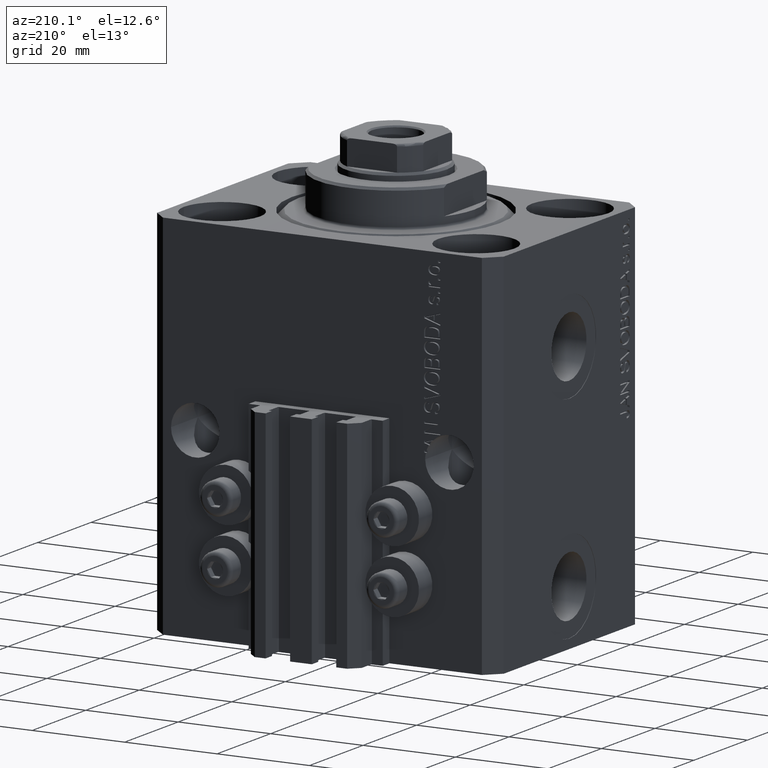
[diagram: clean part render]
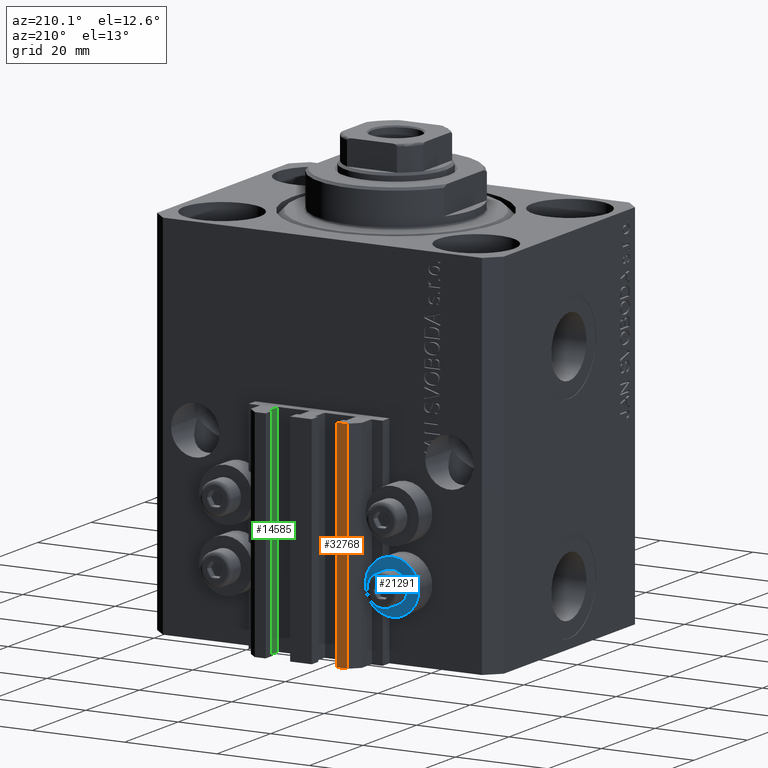
[diagram: same view with three faces highlighted in distinct colors, each labeled with its STEP entity id]
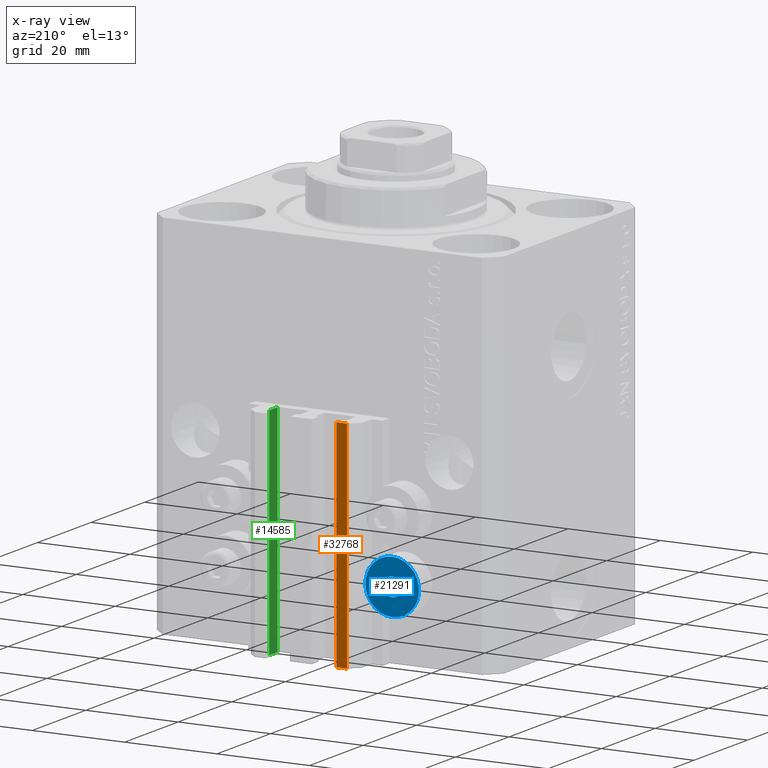
[diagram: x-ray of the same camera — body ghosted, the three highlighted faces saturated]
A machine part, auxiliary view with three faces highlighted in distinct colors.
The next image is the same camera in x-ray (body ghosted, the three faces saturated) — at least one of them is partly hidden behind the body in this view.
Their STEP definitions:

[orange] entity #32768 — the highlighted planar face has unit normal (0, 1, 0).
#3006 = DIRECTION ( 'NONE',  ( -1.000000000000000000, 0.000000000000000000, 0.000000000000000000 ) ) ;
#4577 = ORIENTED_EDGE ( 'NONE', *, *, #40521, .T. ) ;
#5890 = DIRECTION ( 'NONE',  ( 0.000000000000000000, 0.000000000000000000, 1.000000000000000000 ) ) ;
#6488 = DIRECTION ( 'NONE',  ( 0.000000000000000000, 1.000000000000000000, -0.000000000000000000 ) ) ;
#6823 = VERTEX_POINT ( 'NONE', #20398 ) ;
#8864 = EDGE_CURVE ( 'NONE', #6823, #25203, #45850, .T. ) ;
#8929 = EDGE_CURVE ( 'NONE', #6823, #44834, #46582, .T. ) ;
#9697 = DIRECTION ( 'NONE',  ( -1.000000000000000000, 0.000000000000000000, 0.000000000000000000 ) ) ;
#13410 = CARTESIAN_POINT ( 'NONE',  ( -7.650000000000000355, 35.50000000000000000, -80.00000000000000000 ) ) ;
#13784 = LINE ( 'NONE', #32019, #36829 ) ;
#13891 = DIRECTION ( 'NONE',  ( 0.000000000000000000, 0.000000000000000000, 1.000000000000000000 ) ) ;
#14374 = VECTOR ( 'NONE', #9697, 1000.000000000000000 ) ;
#16640 = EDGE_LOOP ( 'NONE', ( #37868, #31636, #40751, #4577 ) ) ;
#16644 = AXIS2_PLACEMENT_3D ( 'NONE', #13410, #6488, #13891 ) ;
#17389 = CARTESIAN_POINT ( 'NONE',  ( -10.00000000000000000, 35.50000000000000000, -80.00000000000000000 ) ) ;
#19265 = VERTEX_POINT ( 'NONE', #33155 ) ;
#20398 = CARTESIAN_POINT ( 'NONE',  ( -7.650000000000000355, 35.50000000000000000, -80.00000000000000000 ) ) ;
#25203 = VERTEX_POINT ( 'NONE', #41188 ) ;
#27887 = CARTESIAN_POINT ( 'NONE',  ( -7.650000000000000355, 35.50000000000000000, -80.00000000000000000 ) ) ;
#28147 = VECTOR ( 'NONE', #38707, 1000.000000000000000 ) ;
#31536 = CARTESIAN_POINT ( 'NONE',  ( -10.00000000000000000, 35.50000000000000000, -80.00000000000000000 ) ) ;
#31636 = ORIENTED_EDGE ( 'NONE', *, *, #8864, .F. ) ;
#31639 = FACE_OUTER_BOUND ( 'NONE', #16640, .T. ) ;
#32019 = CARTESIAN_POINT ( 'NONE',  ( -7.650000000000000355, 35.50000000000000000, -33.00000000000000000 ) ) ;
#32768 = ADVANCED_FACE ( 'NONE', ( #31639 ), #46239, .T. ) ;
#33155 = CARTESIAN_POINT ( 'NONE',  ( -10.00000000000000000, 35.50000000000000000, -33.00000000000000000 ) ) ;
#36829 = VECTOR ( 'NONE', #3006, 1000.000000000000000 ) ;
#37868 = ORIENTED_EDGE ( 'NONE', *, *, #44861, .F. ) ;
#38707 = DIRECTION ( 'NONE',  ( 0.000000000000000000, 0.000000000000000000, 1.000000000000000000 ) ) ;
#38728 = LINE ( 'NONE', #17389, #42143 ) ;
#40521 = EDGE_CURVE ( 'NONE', #44834, #19265, #38728, .T. ) ;
#40751 = ORIENTED_EDGE ( 'NONE', *, *, #8929, .T. ) ;
#41188 = CARTESIAN_POINT ( 'NONE',  ( -7.650000000000000355, 35.50000000000000000, -33.00000000000000000 ) ) ;
#42143 = VECTOR ( 'NONE', #5890, 1000.000000000000000 ) ;
#44834 = VERTEX_POINT ( 'NONE', #31536 ) ;
#44861 = EDGE_CURVE ( 'NONE', #25203, #19265, #13784, .T. ) ;
#45612 = CARTESIAN_POINT ( 'NONE',  ( -7.650000000000000355, 35.50000000000000000, -80.00000000000000000 ) ) ;
#45850 = LINE ( 'NONE', #45612, #28147 ) ;
#46239 = PLANE ( 'NONE',  #16644 ) ;
#46582 = LINE ( 'NONE', #27887, #14374 ) ;

[blue] entity #21291 — the highlighted planar face has unit normal (0, -1, 0).
#2199 = AXIS2_PLACEMENT_3D ( 'NONE', #44322, #4817, #40761 ) ;
#2957 = CIRCLE ( 'NONE', #2199, 5.799999999999999822 ) ;
#3662 = DIRECTION ( 'NONE',  ( -0.000000000000000000, -1.000000000000000000, -0.000000000000000000 ) ) ;
#3867 = CARTESIAN_POINT ( 'NONE',  ( -18.00000000000000355, 32.49999999996100541, -64.00000000000000000 ) ) ;
#4084 = VERTEX_POINT ( 'NONE', #5920 ) ;
#4817 = DIRECTION ( 'NONE',  ( -0.000000000000000000, -1.000000000000000000, -0.000000000000000000 ) ) ;
#5794 = CARTESIAN_POINT ( 'NONE',  ( -18.00000000000000355, 32.49999999996100541, -62.00000000000000000 ) ) ;
#5920 = CARTESIAN_POINT ( 'NONE',  ( -18.00000000000000355, 32.49999999996100541, -58.20000000000000284 ) ) ;
#6001 = DIRECTION ( 'NONE',  ( 0.000000000000000000, 0.000000000000000000, -1.000000000000000000 ) ) ;
#6308 = DIRECTION ( 'NONE',  ( 0.000000000000000000, -1.000000000000000000, 0.000000000000000000 ) ) ;
#7063 = CIRCLE ( 'NONE', #18520, 5.799999999999999822 ) ;
#9614 = EDGE_CURVE ( 'NONE', #21429, #4084, #2957, .T. ) ;
#9732 = AXIS2_PLACEMENT_3D ( 'NONE', #41530, #19493, #6001 ) ;
#9950 = ORIENTED_EDGE ( 'NONE', *, *, #31598, .T. ) ;
#10124 = FACE_BOUND ( 'NONE', #36581, .T. ) ;
#10879 = AXIS2_PLACEMENT_3D ( 'NONE', #35071, #6308, #38913 ) ;
#13322 = DIRECTION ( 'NONE',  ( 0.000000000000000000, 0.000000000000000000, -1.000000000000000000 ) ) ;
#13817 = CIRCLE ( 'NONE', #40618, 2.000000000000001776 ) ;
#14406 = DIRECTION ( 'NONE',  ( 0.000000000000000000, 0.000000000000000000, -1.000000000000000000 ) ) ;
#15867 = CARTESIAN_POINT ( 'NONE',  ( -18.00000000000000355, 32.49999999996100541, -66.00000000000000000 ) ) ;
#16850 = FACE_OUTER_BOUND ( 'NONE', #19311, .T. ) ;
#18307 = EDGE_CURVE ( 'NONE', #22936, #22869, #13817, .T. ) ;
#18520 = AXIS2_PLACEMENT_3D ( 'NONE', #3867, #21604, #14406 ) ;
#19311 = EDGE_LOOP ( 'NONE', ( #23362, #38296 ) ) ;
#19493 = DIRECTION ( 'NONE',  ( -0.000000000000000000, -1.000000000000000000, -0.000000000000000000 ) ) ;
#21291 = ADVANCED_FACE ( 'NONE', ( #10124, #16850 ), #24740, .F. ) ;
#21429 = VERTEX_POINT ( 'NONE', #44339 ) ;
#21604 = DIRECTION ( 'NONE',  ( -0.000000000000000000, -1.000000000000000000, -0.000000000000000000 ) ) ;
#22869 = VERTEX_POINT ( 'NONE', #15867 ) ;
#22936 = VERTEX_POINT ( 'NONE', #5794 ) ;
#23362 = ORIENTED_EDGE ( 'NONE', *, *, #9614, .F. ) ;
#24740 = PLANE ( 'NONE',  #10879 ) ;
#31598 = EDGE_CURVE ( 'NONE', #22869, #22936, #39575, .T. ) ;
#35071 = CARTESIAN_POINT ( 'NONE',  ( -12.20000000000000284, 32.49999999996100541, -64.00000000000000000 ) ) ;
#36581 = EDGE_LOOP ( 'NONE', ( #37880, #9950 ) ) ;
#37880 = ORIENTED_EDGE ( 'NONE', *, *, #18307, .T. ) ;
#38296 = ORIENTED_EDGE ( 'NONE', *, *, #46409, .F. ) ;
#38913 = DIRECTION ( 'NONE',  ( 0.000000000000000000, 0.000000000000000000, 1.000000000000000000 ) ) ;
#39575 = CIRCLE ( 'NONE', #9732, 2.000000000000001776 ) ;
#40618 = AXIS2_PLACEMENT_3D ( 'NONE', #46147, #3662, #13322 ) ;
#40761 = DIRECTION ( 'NONE',  ( 0.000000000000000000, 0.000000000000000000, -1.000000000000000000 ) ) ;
#41530 = CARTESIAN_POINT ( 'NONE',  ( -18.00000000000000355, 32.49999999996100541, -64.00000000000000000 ) ) ;
#44322 = CARTESIAN_POINT ( 'NONE',  ( -18.00000000000000355, 32.49999999996100541, -64.00000000000000000 ) ) ;
#44339 = CARTESIAN_POINT ( 'NONE',  ( -18.00000000000000355, 32.49999999996100541, -69.79999999999999716 ) ) ;
#46147 = CARTESIAN_POINT ( 'NONE',  ( -18.00000000000000355, 32.49999999996100541, -64.00000000000000000 ) ) ;
#46409 = EDGE_CURVE ( 'NONE', #4084, #21429, #7063, .T. ) ;

[green] entity #14585 — the highlighted planar face has unit normal (-1, 0, 0).
#164 = VECTOR ( 'NONE', #45929, 1000.000000000000000 ) ;
#815 = EDGE_LOOP ( 'NONE', ( #37146, #14415, #18414, #15519 ) ) ;
#3115 = VERTEX_POINT ( 'NONE', #31831 ) ;
#5519 = VERTEX_POINT ( 'NONE', #5677 ) ;
#5677 = CARTESIAN_POINT ( 'NONE',  ( 8.399999999999998579, 32.90000000000001990, -33.00000000000000000 ) ) ;
#6368 = LINE ( 'NONE', #14472, #8585 ) ;
#7531 = VERTEX_POINT ( 'NONE', #32332 ) ;
#8585 = VECTOR ( 'NONE', #17861, 1000.000000000000000 ) ;
#9244 = VECTOR ( 'NONE', #41897, 1000.000000000000000 ) ;
#9533 = EDGE_CURVE ( 'NONE', #7531, #26110, #17545, .T. ) ;
#12857 = LINE ( 'NONE', #16483, #164 ) ;
#14415 = ORIENTED_EDGE ( 'NONE', *, *, #17962, .F. ) ;
#14472 = CARTESIAN_POINT ( 'NONE',  ( 8.400000000000000355, 32.90000000000001990, -80.00000000000000000 ) ) ;
#14585 = ADVANCED_FACE ( 'NONE', ( #30360 ), #23885, .T. ) ;
#15519 = ORIENTED_EDGE ( 'NONE', *, *, #9533, .T. ) ;
#16483 = CARTESIAN_POINT ( 'NONE',  ( 8.400000000000000355, 32.90000000000001990, -33.00000000000000000 ) ) ;
#17545 = LINE ( 'NONE', #32626, #46566 ) ;
#17861 = DIRECTION ( 'NONE',  ( -5.421010862427496532E-16, -1.000000000000000000, 0.000000000000000000 ) ) ;
#17962 = EDGE_CURVE ( 'NONE', #3115, #5519, #19402, .T. ) ;
#18414 = ORIENTED_EDGE ( 'NONE', *, *, #47261, .T. ) ;
#19402 = LINE ( 'NONE', #34264, #9244 ) ;
#19815 = CARTESIAN_POINT ( 'NONE',  ( 8.400000000000000355, 32.90000000000001990, -80.00000000000000000 ) ) ;
#21017 = EDGE_CURVE ( 'NONE', #5519, #26110, #12857, .T. ) ;
#23885 = PLANE ( 'NONE',  #45970 ) ;
#26110 = VERTEX_POINT ( 'NONE', #42962 ) ;
#30360 = FACE_OUTER_BOUND ( 'NONE', #815, .T. ) ;
#31831 = CARTESIAN_POINT ( 'NONE',  ( 8.399999999999998579, 32.90000000000001990, -80.00000000000000000 ) ) ;
#32332 = CARTESIAN_POINT ( 'NONE',  ( 8.400000000000000355, 29.70000000000000284, -80.00000000000000000 ) ) ;
#32626 = CARTESIAN_POINT ( 'NONE',  ( 8.400000000000000355, 29.70000000000000284, -80.00000000000000000 ) ) ;
#34264 = CARTESIAN_POINT ( 'NONE',  ( 8.399999999999998579, 32.90000000000001990, -80.00000000000000000 ) ) ;
#37146 = ORIENTED_EDGE ( 'NONE', *, *, #21017, .F. ) ;
#41897 = DIRECTION ( 'NONE',  ( 0.000000000000000000, 0.000000000000000000, 1.000000000000000000 ) ) ;
#42962 = CARTESIAN_POINT ( 'NONE',  ( 8.400000000000000355, 29.70000000000000284, -33.00000000000000000 ) ) ;
#44964 = DIRECTION ( 'NONE',  ( -1.000000000000000000, 5.421010862427496532E-16, 0.000000000000000000 ) ) ;
#45446 = DIRECTION ( 'NONE',  ( -5.421010862427496532E-16, -1.000000000000000000, 0.000000000000000000 ) ) ;
#45929 = DIRECTION ( 'NONE',  ( -5.421010862427496532E-16, -1.000000000000000000, 0.000000000000000000 ) ) ;
#45970 = AXIS2_PLACEMENT_3D ( 'NONE', #19815, #44964, #45446 ) ;
#46566 = VECTOR ( 'NONE', #46761, 1000.000000000000000 ) ;
#46761 = DIRECTION ( 'NONE',  ( 0.000000000000000000, 0.000000000000000000, 1.000000000000000000 ) ) ;
#47261 = EDGE_CURVE ( 'NONE', #3115, #7531, #6368, .T. ) ;